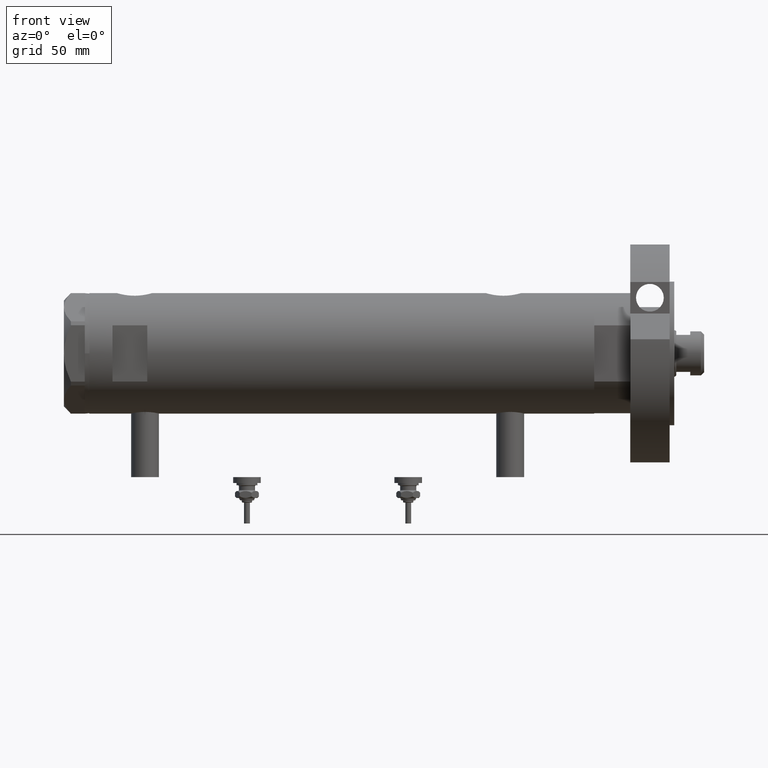
[diagram: clean part render]
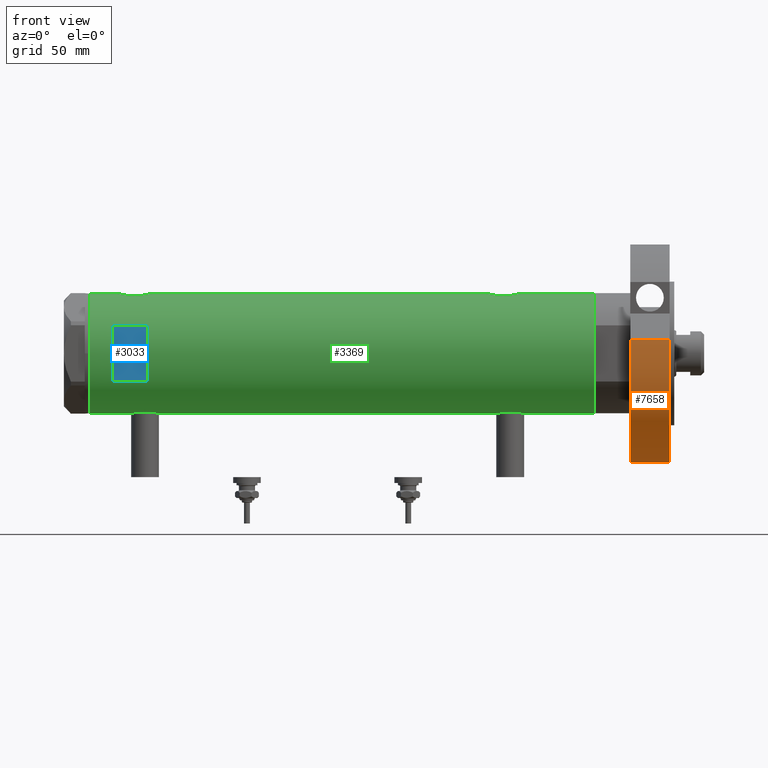
[diagram: same view with three faces highlighted in distinct colors, each labeled with its STEP entity id]
A machine part, front view with three faces highlighted in distinct colors.
Their STEP definitions:

[orange] entity #7658 — the highlighted cylindrical surface (partial cylindrical patch) has radius 47 mm, axis along (-1, -0, 0).
#99 = DIRECTION ( 'NONE',  ( -0.000000000000000000, -0.000000000000000000, -1.000000000000000000 ) ) ;
#138 = ORIENTED_EDGE ( 'NONE', *, *, #5503, .F. ) ;
#517 = DIRECTION ( 'NONE',  ( 1.000000000000000000, 0.000000000000000000, 0.000000000000000000 ) ) ;
#659 = CYLINDRICAL_SURFACE ( 'NONE', #7114, 46.99999999999999289 ) ;
#1024 = CIRCLE ( 'NONE', #2175, 46.99999999999999289 ) ;
#1043 = ORIENTED_EDGE ( 'NONE', *, *, #5547, .F. ) ;
#1628 = CARTESIAN_POINT ( 'NONE',  ( 6.092310621118299352, 46.60347359688769586, 0.000000000000000000 ) ) ;
#1698 = VERTEX_POINT ( 'NONE', #6099 ) ;
#1730 = CARTESIAN_POINT ( 'NONE',  ( 0.000000000000000000, 0.000000000000000000, 0.000000000000000000 ) ) ;
#1815 = ORIENTED_EDGE ( 'NONE', *, *, #5101, .F. ) ;
#1840 = CARTESIAN_POINT ( 'NONE',  ( 0.000000000000000000, 0.000000000000000000, 17.00000000000000000 ) ) ;
#1862 = DIRECTION ( 'NONE',  ( -1.000000000000000000, 0.000000000000000000, 0.000000000000000000 ) ) ;
#2175 = AXIS2_PLACEMENT_3D ( 'NONE', #1730, #6005, #7207 ) ;
#2451 = AXIS2_PLACEMENT_3D ( 'NONE', #1840, #3531, #517 ) ;
#2509 = CARTESIAN_POINT ( 'NONE',  ( 0.000000000000000000, 0.000000000000000000, 17.00000000000000000 ) ) ;
#2855 = VERTEX_POINT ( 'NONE', #7503 ) ;
#2910 = LINE ( 'NONE', #1628, #5799 ) ;
#3039 = VERTEX_POINT ( 'NONE', #5210 ) ;
#3229 = VERTEX_POINT ( 'NONE', #6333 ) ;
#3356 = VECTOR ( 'NONE', #5432, 1000.000000000000000 ) ;
#3531 = DIRECTION ( 'NONE',  ( 0.000000000000000000, 0.000000000000000000, 1.000000000000000000 ) ) ;
#3609 = LINE ( 'NONE', #3688, #3356 ) ;
#3688 = CARTESIAN_POINT ( 'NONE',  ( -46.99999999999999289, 0.000000000000000000, 17.00000000000000000 ) ) ;
#3790 = EDGE_CURVE ( 'NONE', #3039, #1698, #1024, .T. ) ;
#4323 = ORIENTED_EDGE ( 'NONE', *, *, #3790, .T. ) ;
#4466 = EDGE_LOOP ( 'NONE', ( #138, #1043, #1815, #4323 ) ) ;
#5101 = EDGE_CURVE ( 'NONE', #3039, #2855, #2910, .T. ) ;
#5210 = CARTESIAN_POINT ( 'NONE',  ( 6.092310621118299352, 46.60347359688769586, 0.000000000000000000 ) ) ;
#5367 = DIRECTION ( 'NONE',  ( -0.000000000000000000, -0.000000000000000000, 1.000000000000000000 ) ) ;
#5432 = DIRECTION ( 'NONE',  ( -0.000000000000000000, -0.000000000000000000, -1.000000000000000000 ) ) ;
#5503 = EDGE_CURVE ( 'NONE', #3229, #1698, #3609, .T. ) ;
#5547 = EDGE_CURVE ( 'NONE', #2855, #3229, #5931, .T. ) ;
#5613 = FACE_OUTER_BOUND ( 'NONE', #4466, .T. ) ;
#5799 = VECTOR ( 'NONE', #5367, 1000.000000000000000 ) ;
#5931 = CIRCLE ( 'NONE', #2451, 46.99999999999999289 ) ;
#6005 = DIRECTION ( 'NONE',  ( 0.000000000000000000, 0.000000000000000000, 1.000000000000000000 ) ) ;
#6099 = CARTESIAN_POINT ( 'NONE',  ( -46.99999999999999289, 0.000000000000000000, 0.000000000000000000 ) ) ;
#6333 = CARTESIAN_POINT ( 'NONE',  ( -46.99999999999999289, 0.000000000000000000, 17.00000000000000000 ) ) ;
#7114 = AXIS2_PLACEMENT_3D ( 'NONE', #2509, #99, #1862 ) ;
#7207 = DIRECTION ( 'NONE',  ( 1.000000000000000000, 0.000000000000000000, 0.000000000000000000 ) ) ;
#7503 = CARTESIAN_POINT ( 'NONE',  ( 6.092310621118299352, 46.60347359688769586, 17.00000000000000000 ) ) ;
#7658 = ADVANCED_FACE ( 'NONE', ( #5613 ), #659, .T. ) ;

[blue] entity #3033 — the highlighted planar face has unit normal (-0, 1, 0).
#28 = CARTESIAN_POINT ( 'NONE',  ( -26.00000000000000355, -23.00000000000000355, 83.95000000000003126 ) ) ;
#78 = LINE ( 'NONE', #2525, #3083 ) ;
#166 = VERTEX_POINT ( 'NONE', #5138 ) ;
#297 = DIRECTION ( 'NONE',  ( 0.000000000000000000, 1.000000000000000000, 0.000000000000000000 ) ) ;
#644 = CARTESIAN_POINT ( 'NONE',  ( 12.12435565298214080, -23.00000000000000355, 83.95000000000001705 ) ) ;
#645 = VECTOR ( 'NONE', #5662, 1000.000000000000000 ) ;
#779 = CARTESIAN_POINT ( 'NONE',  ( 12.12435565298214080, -23.00000000000000355, 98.95000000000001705 ) ) ;
#1311 = ORIENTED_EDGE ( 'NONE', *, *, #4701, .T. ) ;
#1417 = LINE ( 'NONE', #6971, #5955 ) ;
#1467 = VECTOR ( 'NONE', #3658, 1000.000000000000000 ) ;
#1920 = DIRECTION ( 'NONE',  ( -0.000000000000000000, -0.000000000000000000, -1.000000000000000000 ) ) ;
#2141 = ORIENTED_EDGE ( 'NONE', *, *, #7875, .F. ) ;
#2525 = CARTESIAN_POINT ( 'NONE',  ( -12.12435565298214080, -23.00000000000000355, -108.9500000000000028 ) ) ;
#2756 = DIRECTION ( 'NONE',  ( 0.000000000000000000, -0.000000000000000000, 1.000000000000000000 ) ) ;
#2941 = AXIS2_PLACEMENT_3D ( 'NONE', #5328, #297, #2756 ) ;
#3033 = ADVANCED_FACE ( 'NONE', ( #5933 ), #5898, .F. ) ;
#3083 = VECTOR ( 'NONE', #1920, 1000.000000000000000 ) ;
#3161 = LINE ( 'NONE', #28, #645 ) ;
#3584 = EDGE_LOOP ( 'NONE', ( #6161, #1311, #3758, #2141 ) ) ;
#3658 = DIRECTION ( 'NONE',  ( 1.000000000000000000, -0.000000000000000000, -0.000000000000000000 ) ) ;
#3705 = VERTEX_POINT ( 'NONE', #4985 ) ;
#3758 = ORIENTED_EDGE ( 'NONE', *, *, #7029, .T. ) ;
#3883 = VERTEX_POINT ( 'NONE', #644 ) ;
#4360 = EDGE_CURVE ( 'NONE', #166, #3705, #78, .T. ) ;
#4701 = EDGE_CURVE ( 'NONE', #3705, #3883, #3161, .T. ) ;
#4985 = CARTESIAN_POINT ( 'NONE',  ( -12.12435565298214080, -23.00000000000000355, 83.95000000000001705 ) ) ;
#5036 = LINE ( 'NONE', #7488, #1467 ) ;
#5138 = CARTESIAN_POINT ( 'NONE',  ( -12.12435565298214080, -23.00000000000000355, 98.95000000000001705 ) ) ;
#5328 = CARTESIAN_POINT ( 'NONE',  ( -26.00000000000000355, -23.00000000000000355, 98.95000000000001705 ) ) ;
#5662 = DIRECTION ( 'NONE',  ( 1.000000000000000000, -0.000000000000000000, -0.000000000000000000 ) ) ;
#5898 = PLANE ( 'NONE',  #2941 ) ;
#5933 = FACE_OUTER_BOUND ( 'NONE', #3584, .T. ) ;
#5955 = VECTOR ( 'NONE', #7046, 1000.000000000000000 ) ;
#6161 = ORIENTED_EDGE ( 'NONE', *, *, #4360, .T. ) ;
#6335 = VERTEX_POINT ( 'NONE', #779 ) ;
#6971 = CARTESIAN_POINT ( 'NONE',  ( 12.12435565298214080, -23.00000000000000355, -108.9500000000000028 ) ) ;
#7029 = EDGE_CURVE ( 'NONE', #3883, #6335, #1417, .T. ) ;
#7046 = DIRECTION ( 'NONE',  ( 0.000000000000000000, 0.000000000000000000, 1.000000000000000000 ) ) ;
#7488 = CARTESIAN_POINT ( 'NONE',  ( -26.00000000000000355, -23.00000000000000355, 98.95000000000001705 ) ) ;
#7875 = EDGE_CURVE ( 'NONE', #166, #6335, #5036, .T. ) ;

[green] entity #3369 — the highlighted cylindrical surface (partial cylindrical patch) has radius 26 mm, axis along (-1, -0, 0).
#46 = CARTESIAN_POINT ( 'NONE',  ( -25.57228991600091916, -4.705691472451703383, -76.78339690124650474 ) ) ;
#64 = CARTESIAN_POINT ( 'NONE',  ( -25.92425332714051933, -2.018894156999441858, 79.02103879324673130 ) ) ;
#78 = LINE ( 'NONE', #2525, #3083 ) ;
#119 = CARTESIAN_POINT ( 'NONE',  ( 25.11243836838846377, -6.738202653785839935, 86.12043350844844269 ) ) ;
#144 = CARTESIAN_POINT ( 'NONE',  ( -25.57228991600092272, -4.705691472451695390, 80.81660309875346115 ) ) ;
#162 = CARTESIAN_POINT ( 'NONE',  ( 25.11342038069227200, -6.734617143597215971, 92.78770695790494472 ) ) ;
#166 = VERTEX_POINT ( 'NONE', #5138 ) ;
#198 = CARTESIAN_POINT ( 'NONE',  ( 25.38109653984943392, -5.641393955635675361, 94.39819092448752258 ) ) ;
#217 = CARTESIAN_POINT ( 'NONE',  ( -25.81232680456766815, -3.137210741985116513, 90.37113657221574670 ) ) ;
#228 = EDGE_CURVE ( 'NONE', #5556, #5837, #5666, .T. ) ;
#240 = CIRCLE ( 'NONE', #2535, 26.00000000000000355 ) ;
#244 = CARTESIAN_POINT ( 'NONE',  ( -25.24765475072630139, -6.209883762780003202, -71.83321815644899289 ) ) ;
#258 = CARTESIAN_POINT ( 'NONE',  ( -25.38662204309616399, -5.616507264474307703, 87.72199377719323365 ) ) ;
#281 = CARTESIAN_POINT ( 'NONE',  ( 24.89854802586675220, -7.487520416261751244, -69.25184316422095776 ) ) ;
#318 = CARTESIAN_POINT ( 'NONE',  ( 25.01107424167500071, -7.102941973849621782, -72.17062848662580166 ) ) ;
#340 = LINE ( 'NONE', #5175, #1562 ) ;
#396 = CARTESIAN_POINT ( 'NONE',  ( 25.27534302296961854, -6.097250460344751488, -65.37590386902925843 ) ) ;
#401 = CARTESIAN_POINT ( 'NONE',  ( -26.00000000000000355, 3.184081677783118585E-15, -108.9500000000000028 ) ) ;
#469 = CARTESIAN_POINT ( 'NONE',  ( 25.11243836838845311, -6.738202653785838159, -73.07956649155158857 ) ) ;
#555 = CARTESIAN_POINT ( 'NONE',  ( 25.52449676677458967, -4.953491517965894708, -75.38674491334074901 ) ) ;
#602 = CARTESIAN_POINT ( 'NONE',  ( -25.92425332714051933, -2.018894156999447631, -78.57896120675330565 ) ) ;
#613 = VECTOR ( 'NONE', #5198, 1000.000000000000000 ) ;
#620 = CARTESIAN_POINT ( 'NONE',  ( -26.00000000000001066, -0.4086738135806035066, 78.70000000000000284 ) ) ;
#644 = CARTESIAN_POINT ( 'NONE',  ( 12.12435565298214080, -23.00000000000000355, 83.95000000000001705 ) ) ;
#646 = EDGE_CURVE ( 'NONE', #6305, #4344, #7200, .T. ) ;
#647 = CARTESIAN_POINT ( 'NONE',  ( -25.72076778631230098, -3.815670258243491819, -77.61687810531877574 ) ) ;
#675 = EDGE_CURVE ( 'NONE', #6335, #166, #1392, .T. ) ;
#679 = CARTESIAN_POINT ( 'NONE',  ( 25.59500516383205593, -4.575229401795806616, 83.50212244934579076 ) ) ;
#697 = ORIENTED_EDGE ( 'NONE', *, *, #1704, .F. ) ;
#704 = CARTESIAN_POINT ( 'NONE',  ( -25.99999999999999289, -0.4144764235405741237, 91.19999999999997442 ) ) ;
#759 = CARTESIAN_POINT ( 'NONE',  ( 25.78993643992928142, -3.329561377902412467, 96.18821560278738048 ) ) ;
#762 = AXIS2_PLACEMENT_3D ( 'NONE', #1617, #3498, #4030 ) ;
#779 = CARTESIAN_POINT ( 'NONE',  ( 12.12435565298214080, -23.00000000000000355, 98.95000000000001705 ) ) ;
#784 = CARTESIAN_POINT ( 'NONE',  ( -25.72076778631230098, -3.815670258243490043, 79.98312189468119016 ) ) ;
#795 = CARTESIAN_POINT ( 'NONE',  ( 0.000000000000000000, 0.000000000000000000, 108.9500000000000028 ) ) ;
#801 = CARTESIAN_POINT ( 'NONE',  ( 24.89475831528844907, -7.500067228253142204, 88.95662571746466085 ) ) ;
#808 = CARTESIAN_POINT ( 'NONE',  ( -25.99009752186833566, -0.8230863847107360298, -66.44082928593320503 ) ) ;
#826 = CARTESIAN_POINT ( 'NONE',  ( -25.42883439573799720, -5.424786127492320809, 88.08081457260908564 ) ) ;
#841 = CARTESIAN_POINT ( 'NONE',  ( 25.27534302296961499, -6.097250460344759482, 93.82409613097075862 ) ) ;
#848 = CARTESIAN_POINT ( 'NONE',  ( 0.000000000000000000, 0.000000000000000000, 83.95000000000011653 ) ) ;
#859 = CARTESIAN_POINT ( 'NONE',  ( -25.28632996747172967, -6.050474653715409268, 86.56911870841543077 ) ) ;
#862 = VERTEX_POINT ( 'NONE', #2528 ) ;
#888 = CARTESIAN_POINT ( 'NONE',  ( 25.78993643992928497, -3.329561377902416464, -63.01178439721262237 ) ) ;
#890 = CARTESIAN_POINT ( 'NONE',  ( -26.00000000000001066, -0.4144764235405758446, -66.40000000000004832 ) ) ;
#953 = CARTESIAN_POINT ( 'NONE',  ( 26.00000000000000355, 3.155021778966484351E-16, -77.25000000000001421 ) ) ;
#970 = CARTESIAN_POINT ( 'NONE',  ( 0.000000000000000000, 0.000000000000000000, 98.95000000000001705 ) ) ;
#1092 = ORIENTED_EDGE ( 'NONE', *, *, #2392, .T. ) ;
#1156 = ORIENTED_EDGE ( 'NONE', *, *, #6503, .T. ) ;
#1160 = CARTESIAN_POINT ( 'NONE',  ( 25.59500516383204882, -4.575229401795805728, -75.69787755065419788 ) ) ;
#1208 = CARTESIAN_POINT ( 'NONE',  ( -25.99036913299956453, -0.8159609457881454864, -78.86031143031891588 ) ) ;
#1264 = CARTESIAN_POINT ( 'NONE',  ( -25.99036913299955742, -0.8159609457881448202, 78.73968856968109264 ) ) ;
#1281 = CARTESIAN_POINT ( 'NONE',  ( 24.96672817551787915, -7.257586026187405004, 91.40384199721297875 ) ) ;
#1338 = CARTESIAN_POINT ( 'NONE',  ( -26.00000000000000355, 3.184081677783118585E-15, -108.9500000000000028 ) ) ;
#1363 = CARTESIAN_POINT ( 'NONE',  ( 26.00000000000000355, -3.975030973907779525E-20, 96.95000000000000284 ) ) ;
#1367 = EDGE_CURVE ( 'NONE', #5837, #2918, #240, .T. ) ;
#1387 = CARTESIAN_POINT ( 'NONE',  ( -25.25025691038242215, -6.198787452305312584, 84.12558834604206481 ) ) ;
#1392 = CIRCLE ( 'NONE', #7557, 26.00000000000000355 ) ;
#1405 = CARTESIAN_POINT ( 'NONE',  ( 25.59665538672497576, -4.580438224580683837, 95.40889127712392792 ) ) ;
#1408 = AXIS2_PLACEMENT_3D ( 'NONE', #848, #2534, #3865 ) ;
#1411 = ORIENTED_EDGE ( 'NONE', *, *, #7029, .F. ) ;
#1415 = CARTESIAN_POINT ( 'NONE',  ( -25.42883439573799720, -5.424786127492319920, -69.51918542739090867 ) ) ;
#1417 = LINE ( 'NONE', #6971, #5955 ) ;
#1429 = CARTESIAN_POINT ( 'NONE',  ( -25.31551596256916525, -5.928819821281963165, 82.92988508095918121 ) ) ;
#1494 = CARTESIAN_POINT ( 'NONE',  ( -25.71926338401909362, -3.813768894920908537, -67.69427860166180722 ) ) ;
#1518 = VERTEX_POINT ( 'NONE', #953 ) ;
#1562 = VECTOR ( 'NONE', #2142, 1000.000000000000000 ) ;
#1576 = CARTESIAN_POINT ( 'NONE',  ( -25.81232680456766815, -3.137210741985112072, -67.22886342778420499 ) ) ;
#1617 = CARTESIAN_POINT ( 'NONE',  ( 0.000000000000000000, 0.000000000000000000, -108.9500000000000028 ) ) ;
#1642 = CARTESIAN_POINT ( 'NONE',  ( 24.96672817551788626, -7.257586026187406780, -67.79615800278703830 ) ) ;
#1648 = LINE ( 'NONE', #5316, #613 ) ;
#1680 = CARTESIAN_POINT ( 'NONE',  ( 25.93098857934041490, -1.953835360821270628, -77.00773664702565213 ) ) ;
#1704 = EDGE_CURVE ( 'NONE', #4344, #5556, #6868, .T. ) ;
#1714 = CARTESIAN_POINT ( 'NONE',  ( -26.00000000000000355, 3.184081677783118585E-15, 108.9500000000000028 ) ) ;
#1724 = DIRECTION ( 'NONE',  ( 0.000000000000000000, 0.000000000000000000, 1.000000000000000000 ) ) ;
#1797 = CARTESIAN_POINT ( 'NONE',  ( 25.30930190055638818, -5.959775463244130655, -74.32974043478030524 ) ) ;
#1877 = CARTESIAN_POINT ( 'NONE',  ( 25.38125492692911678, -5.649348210287295835, 84.49305665653602659 ) ) ;
#1903 = CARTESIAN_POINT ( 'NONE',  ( -25.78943824387523520, -3.306687742228914484, 79.64245861216535616 ) ) ;
#1920 = DIRECTION ( 'NONE',  ( -0.000000000000000000, -0.000000000000000000, -1.000000000000000000 ) ) ;
#2011 = CARTESIAN_POINT ( 'NONE',  ( -25.25025691038241860, -6.198787452305312584, -73.47441165395792950 ) ) ;
#2023 = CARTESIAN_POINT ( 'NONE',  ( -26.00000000000000355, 1.227111019500118713E-15, 91.20000000000000284 ) ) ;
#2040 = CARTESIAN_POINT ( 'NONE',  ( 24.90947356773249055, -7.451722770779351634, 88.46809158171845411 ) ) ;
#2058 = ORIENTED_EDGE ( 'NONE', *, *, #2617, .T. ) ;
#2063 = CARTESIAN_POINT ( 'NONE',  ( -25.59645788645699227, -4.565358797148518555, 89.22330529203479443 ) ) ;
#2126 = CARTESIAN_POINT ( 'NONE',  ( -25.23763877699556701, -6.249927116972441965, -72.85835527665466316 ) ) ;
#2142 = DIRECTION ( 'NONE',  ( 0.000000000000000000, 0.000000000000000000, 1.000000000000000000 ) ) ;
#2155 = CARTESIAN_POINT ( 'NONE',  ( 25.93098857934040780, -1.953835360821273515, 82.19226335297440755 ) ) ;
#2163 = CARTESIAN_POINT ( 'NONE',  ( 25.41756773306325812, -5.475260495868981003, -64.61859126343054527 ) ) ;
#2165 = CARTESIAN_POINT ( 'NONE',  ( -25.25769689814629970, -6.168504065326070318, -73.67646635296743796 ) ) ;
#2204 = CARTESIAN_POINT ( 'NONE',  ( 25.98599366666249111, -0.9828433289544102891, -62.29811598276526752 ) ) ;
#2240 = CARTESIAN_POINT ( 'NONE',  ( 24.91324908721445297, -7.438459228814674695, -68.75982500625811156 ) ) ;
#2247 = CYLINDRICAL_SURFACE ( 'NONE', #762, 26.00000000000000355 ) ;
#2298 = EDGE_LOOP ( 'NONE', ( #5460, #1156, #6201, #4449, #2058, #4851, #1092, #4084, #5164, #697, #6063, #3518 ) ) ;
#2345 = AXIS2_PLACEMENT_3D ( 'NONE', #6376, #5734, #3949 ) ;
#2392 = EDGE_CURVE ( 'NONE', #4623, #2918, #1648, .T. ) ;
#2485 = CARTESIAN_POINT ( 'NONE',  ( 24.96970063328116751, -7.247045583599700080, 87.50280785145197626 ) ) ;
#2495 = CARTESIAN_POINT ( 'NONE',  ( -25.52190669608695472, -4.968444991210427375, -76.46341092192484723 ) ) ;
#2511 = CARTESIAN_POINT ( 'NONE',  ( -25.87202607293667000, -2.583404329177993120, 79.25526333145485580 ) ) ;
#2525 = CARTESIAN_POINT ( 'NONE',  ( -12.12435565298214080, -23.00000000000000355, -108.9500000000000028 ) ) ;
#2528 = CARTESIAN_POINT ( 'NONE',  ( 26.00000000000000355, -3.975028449552882818E-20, -62.24999999999999289 ) ) ;
#2534 = DIRECTION ( 'NONE',  ( -0.000000000000000000, -4.625929269271486900E-15, 1.000000000000000000 ) ) ;
#2535 = AXIS2_PLACEMENT_3D ( 'NONE', #795, #2610, #3245 ) ;
#2555 = CARTESIAN_POINT ( 'NONE',  ( -25.85385060263650914, -2.778671585188189574, 90.56314451304237423 ) ) ;
#2572 = CARTESIAN_POINT ( 'NONE',  ( 25.72912156655464955, -3.765948295762494791, 82.94557024600776174 ) ) ;
#2577 = VERTEX_POINT ( 'NONE', #6314 ) ;
#2600 = CARTESIAN_POINT ( 'NONE',  ( -25.74330903162726258, -3.648508829439215617, 90.02867714715799252 ) ) ;
#2610 = DIRECTION ( 'NONE',  ( 0.000000000000000000, 0.000000000000000000, 1.000000000000000000 ) ) ;
#2615 = CARTESIAN_POINT ( 'NONE',  ( 24.89478872726945369, -7.499966281647711064, 89.69821850634781413 ) ) ;
#2617 = EDGE_CURVE ( 'NONE', #862, #6140, #6914, .T. ) ;
#2636 = CARTESIAN_POINT ( 'NONE',  ( -25.57167894663063024, -4.701762988462085069, 89.07280450192419607 ) ) ;
#2661 = CARTESIAN_POINT ( 'NONE',  ( -25.67063510297210271, -4.128418051804843003, -67.95317424728736455 ) ) ;
#2674 = CARTESIAN_POINT ( 'NONE',  ( -25.23758491649666524, -6.250144606721703688, 85.36011699571807299 ) ) ;
#2675 = CARTESIAN_POINT ( 'NONE',  ( 26.00000000000000355, 0.000000000000000000, 108.9500000000000028 ) ) ;
#2703 = CARTESIAN_POINT ( 'NONE',  ( -25.64593536028936072, -4.278686337618961666, -68.08968397039120646 ) ) ;
#2738 = CARTESIAN_POINT ( 'NONE',  ( 24.95200646071794637, -7.307522494171291960, -71.45607564187282890 ) ) ;
#2766 = CARTESIAN_POINT ( 'NONE',  ( 26.00000000000000355, 0.000000000000000000, -108.9500000000000028 ) ) ;
#2777 = CARTESIAN_POINT ( 'NONE',  ( -25.28680988956730147, -6.048472998962280300, -74.27627694188244334 ) ) ;
#2808 = CARTESIAN_POINT ( 'NONE',  ( 25.88994451797511687, -2.432613607265607936, 82.33859031286796437 ) ) ;
#2850 = CARTESIAN_POINT ( 'NONE',  ( 26.00000000000000000, -0.4982617809740604309, 81.94999999999998863 ) ) ;
#2856 = CARTESIAN_POINT ( 'NONE',  ( 25.11342038069226135, -6.734617143597214195, -66.41229304209502970 ) ) ;
#2918 = VERTEX_POINT ( 'NONE', #2675 ) ;
#3059 = CARTESIAN_POINT ( 'NONE',  ( -25.87202607293667000, -2.583404329177999337, -78.34473666854512430 ) ) ;
#3083 = VECTOR ( 'NONE', #1920, 1000.000000000000000 ) ;
#3130 = CARTESIAN_POINT ( 'NONE',  ( -26.00000000000000355, 3.184077527313362130E-15, 78.69999999999998863 ) ) ;
#3170 = CARTESIAN_POINT ( 'NONE',  ( 25.52567976009756023, -4.956266804246118873, 95.10019927459099165 ) ) ;
#3195 = CARTESIAN_POINT ( 'NONE',  ( -25.25769689814630325, -6.168504065326069430, 83.92353364703255636 ) ) ;
#3220 = CARTESIAN_POINT ( 'NONE',  ( -25.28632996747171546, -6.050474653715410156, -71.03088129158460617 ) ) ;
#3235 = CARTESIAN_POINT ( 'NONE',  ( -25.23763877699557412, -6.249927116972443741, 84.74164472334534537 ) ) ;
#3245 = DIRECTION ( 'NONE',  ( 1.000000000000000000, 0.000000000000000000, 0.000000000000000000 ) ) ;
#3274 = CARTESIAN_POINT ( 'NONE',  ( -25.49846181844014481, -5.083495422175113632, 88.59177503382598218 ) ) ;
#3279 = CARTESIAN_POINT ( 'NONE',  ( 26.00000000000000355, 0.000000000000000000, -108.9500000000000028 ) ) ;
#3289 = CARTESIAN_POINT ( 'NONE',  ( 25.01107424167501492, -7.102941973849622670, 87.02937151337422961 ) ) ;
#3331 = EDGE_CURVE ( 'NONE', #4624, #2577, #4554, .T. ) ;
#3336 = CARTESIAN_POINT ( 'NONE',  ( -25.38662204309617465, -5.616507264474307703, -69.87800622280676066 ) ) ;
#3368 = B_SPLINE_CURVE_WITH_KNOTS ( 'NONE', 3,
 ( #6164, #6289, #1208, #6121, #602, #3059, #5520, #4304, #6762, #647, #5559, #46, #2495, #7404, #4954, #6327, #2777, #2165, #2011, #7009, #2126, #3983, #244, #3220, #4548, #3336, #1415, #5230, #7086, #7645, #7567, #2703, #2661, #1494, #7528, #1576, #7686, #4628, #4470, #808, #890, #5195 ),
 .UNSPECIFIED., .F., .F.,
 ( 4, 2, 2, 2, 2, 2, 2, 2, 2, 2, 2, 2, 2, 2, 2, 2, 2, 2, 2, 2, 4 ),
 ( 0.01961238453869445023, 0.02083783025472766420, 0.02206327597076088165, 0.02267599882877747997, 0.02328872168679408175, 0.02451416740282726103, 0.02573961311886044032, 0.02696505883489361960, 0.02819050455092679541, 0.02880322740894340761, 0.02941595026696001633, 0.03064139598299327888, 0.03186684169902653796, 0.03309228741505979704, 0.03370501027307643005, 0.03431773313109305612, 0.03493045598910968219, 0.03554317884712631520, 0.03676862456315957428, 0.03799407027919284030, 0.03921951599522609938 ),
 .UNSPECIFIED. ) ;
#3369 = ADVANCED_FACE ( 'NONE', ( #7768, #5199 ), #2247, .T. ) ;
#3414 = CARTESIAN_POINT ( 'NONE',  ( 25.52567976009756734, -4.956266804246113544, -64.09980072540906804 ) ) ;
#3498 = DIRECTION ( 'NONE',  ( 0.000000000000000000, 0.000000000000000000, 1.000000000000000000 ) ) ;
#3518 = ORIENTED_EDGE ( 'NONE', *, *, #7902, .F. ) ;
#3529 = CARTESIAN_POINT ( 'NONE',  ( 26.00000000000001066, -0.4982617809740571002, -77.25000000000004263 ) ) ;
#3606 = CARTESIAN_POINT ( 'NONE',  ( 25.62983961939740141, -4.376509667782460866, -75.84558499042961444 ) ) ;
#3672 = CARTESIAN_POINT ( 'NONE',  ( -26.00000000000000355, 3.184077527313362130E-15, 78.69999999999998863 ) ) ;
#3705 = VERTEX_POINT ( 'NONE', #4985 ) ;
#3716 = CARTESIAN_POINT ( 'NONE',  ( -25.95218276861526263, -1.627663810194431404, 78.90149019612394454 ) ) ;
#3766 = CARTESIAN_POINT ( 'NONE',  ( -26.00000000000000355, 3.184081677783118585E-15, -108.9500000000000028 ) ) ;
#3812 = CARTESIAN_POINT ( 'NONE',  ( 25.31004928890825667, -5.952041021437470825, 94.01980599883506784 ) ) ;
#3840 = CARTESIAN_POINT ( 'NONE',  ( -25.31538696791482224, -5.929326713517952818, 86.96796632208101130 ) ) ;
#3865 = DIRECTION ( 'NONE',  ( 1.776356839400250465E-15, 1.000000000000000000, 4.803849625781927035E-15 ) ) ;
#3881 = CARTESIAN_POINT ( 'NONE',  ( -25.24022290516698774, -6.239518219915429320, 84.53402784061569264 ) ) ;
#3883 = VERTEX_POINT ( 'NONE', #644 ) ;
#3917 = EDGE_CURVE ( 'NONE', #3705, #3883, #5268, .T. ) ;
#3918 = CARTESIAN_POINT ( 'NONE',  ( -25.92364458890660472, -2.026637113504541343, 90.87630990691475574 ) ) ;
#3949 = DIRECTION ( 'NONE',  ( 1.000000000000000000, 0.000000000000000000, 0.000000000000000000 ) ) ;
#3983 = CARTESIAN_POINT ( 'NONE',  ( -25.23758491649665459, -6.250144606721702800, -72.23988300428190712 ) ) ;
#4021 = CARTESIAN_POINT ( 'NONE',  ( 25.72873412774686130, -3.768477344985557753, -63.24712539855536875 ) ) ;
#4030 = DIRECTION ( 'NONE',  ( 1.000000000000000000, 0.000000000000000000, 0.000000000000000000 ) ) ;
#4037 = EDGE_CURVE ( 'NONE', #862, #1518, #4546, .T. ) ;
#4084 = ORIENTED_EDGE ( 'NONE', *, *, #1367, .F. ) ;
#4089 = CARTESIAN_POINT ( 'NONE',  ( 26.00000000000000355, -3.975030973907779525E-20, 96.95000000000000284 ) ) ;
#4177 = DIRECTION ( 'NONE',  ( 1.000000000000000000, 0.000000000000000000, 0.000000000000000000 ) ) ;
#4216 = VECTOR ( 'NONE', #7515, 1000.000000000000000 ) ;
#4251 = CARTESIAN_POINT ( 'NONE',  ( 25.78902964777117290, -3.336582972512958101, -76.48475840457741981 ) ) ;
#4283 = ORIENTED_EDGE ( 'NONE', *, *, #675, .F. ) ;
#4304 = CARTESIAN_POINT ( 'NONE',  ( -25.81160981652326925, -3.129523010631804159, -78.06392973722074657 ) ) ;
#4335 = CARTESIAN_POINT ( 'NONE',  ( 25.48871066912672845, -5.133852125086512785, 83.97709693256024366 ) ) ;
#4344 = VERTEX_POINT ( 'NONE', #3130 ) ;
#4360 = EDGE_CURVE ( 'NONE', #166, #3705, #78, .T. ) ;
#4446 = CARTESIAN_POINT ( 'NONE',  ( -25.67167563980648026, -4.129238867693847403, 80.24065943568896841 ) ) ;
#4449 = ORIENTED_EDGE ( 'NONE', *, *, #4037, .F. ) ;
#4470 = CARTESIAN_POINT ( 'NONE',  ( -25.95206678899177533, -1.628763264760248353, -66.60199186669787252 ) ) ;
#4486 = CARTESIAN_POINT ( 'NONE',  ( -25.99009752186832856, -0.8230863847107351416, 91.15917071406683192 ) ) ;
#4502 = CARTESIAN_POINT ( 'NONE',  ( 24.95200646071793926, -7.307522494171290184, 87.74392435812720237 ) ) ;
#4546 = B_SPLINE_CURVE_WITH_KNOTS ( 'NONE', 3,
 ( #5919, #5758, #2204, #5153, #7041, #888, #4021, #4698, #3414, #2163, #7122, #7153, #396, #6443, #2856, #5309, #1642, #7761, #2240, #281, #6554, #5798, #5193, #2738, #5838, #318, #7917, #469, #7271, #1797, #6673, #6072, #555, #1160, #3606, #7794, #4251, #6711, #1680, #7233, #3529, #4901 ),
 .UNSPECIFIED., .F., .F.,
 ( 4, 2, 2, 2, 2, 2, 2, 2, 2, 2, 2, 2, 2, 2, 2, 2, 2, 2, 2, 2, 4 ),
 ( 0.02357432247332888822, 0.02504731828495722692, 0.02652031409658556910, 0.02799330990821390780, 0.02946630571984224650, 0.03020280362565641585, 0.03093930153147058520, 0.03241229734309895860, 0.03388529315472733200, 0.03462179106054152217, 0.03535828896635570540, 0.03683128477798407879, 0.03756778268379826896, 0.03830428058961245219, 0.03977727640124082559, 0.04125027221286919898, 0.04198677011868337527, 0.04272326802449755156, 0.04419626383612587639, 0.04566925964775419428, 0.04714225545938251910 ),
 .UNSPECIFIED. ) ;
#4548 = CARTESIAN_POINT ( 'NONE',  ( -25.31538696791482224, -5.929326713517954595, -70.63203367791901144 ) ) ;
#4554 = LINE ( 'NONE', #1338, #6422 ) ;
#4619 = CARTESIAN_POINT ( 'NONE',  ( 26.00000000000000355, 1.142179864233347086E-15, 81.94999999999998863 ) ) ;
#4623 = VERTEX_POINT ( 'NONE', #4089 ) ;
#4624 = VERTEX_POINT ( 'NONE', #5381 ) ;
#4628 = CARTESIAN_POINT ( 'NONE',  ( -25.92364458890659407, -2.026637113504532017, -66.72369009308523857 ) ) ;
#4698 = CARTESIAN_POINT ( 'NONE',  ( 25.59665538672497220, -4.580438224580683837, -63.79110872287611755 ) ) ;
#4849 = VERTEX_POINT ( 'NONE', #3279 ) ;
#4851 = ORIENTED_EDGE ( 'NONE', *, *, #5649, .F. ) ;
#4901 = CARTESIAN_POINT ( 'NONE',  ( 26.00000000000000355, 3.155021778966484351E-16, -77.25000000000001421 ) ) ;
#4914 = EDGE_CURVE ( 'NONE', #4849, #1518, #340, .T. ) ;
#4943 = CARTESIAN_POINT ( 'NONE',  ( 25.30930190055639528, -5.959775463244130655, 84.87025956521969761 ) ) ;
#4954 = CARTESIAN_POINT ( 'NONE',  ( -25.38744165544136422, -5.612847683295913548, -75.42987583238478067 ) ) ;
#4966 = CARTESIAN_POINT ( 'NONE',  ( -25.85288666140180069, -2.767917424206677524, 79.34257790010329359 ) ) ;
#4985 = CARTESIAN_POINT ( 'NONE',  ( -12.12435565298214080, -23.00000000000000355, 83.95000000000001705 ) ) ;
#5026 = CARTESIAN_POINT ( 'NONE',  ( 25.78902964777116225, -3.336582972512959877, 82.71524159542262566 ) ) ;
#5045 = CARTESIAN_POINT ( 'NONE',  ( -26.00000000000000355, 1.227111019500118713E-15, -66.40000000000000568 ) ) ;
#5089 = CARTESIAN_POINT ( 'NONE',  ( -25.71926338401910073, -3.813768894920909425, 89.90572139833814447 ) ) ;
#5104 = CARTESIAN_POINT ( 'NONE',  ( 24.92415241886515531, -7.401968919186696638, 90.68323537444815940 ) ) ;
#5138 = CARTESIAN_POINT ( 'NONE',  ( -12.12435565298214080, -23.00000000000000355, 98.95000000000001705 ) ) ;
#5153 = CARTESIAN_POINT ( 'NONE',  ( 25.93085545515513246, -1.956676574435514349, -62.49272963169730133 ) ) ;
#5164 = ORIENTED_EDGE ( 'NONE', *, *, #228, .F. ) ;
#5175 = CARTESIAN_POINT ( 'NONE',  ( 26.00000000000000355, 0.000000000000000000, -108.9500000000000028 ) ) ;
#5193 = CARTESIAN_POINT ( 'NONE',  ( 24.90947356773249055, -7.451722770779349858, -70.73190841828153452 ) ) ;
#5195 = CARTESIAN_POINT ( 'NONE',  ( -26.00000000000000355, 1.227111019500118713E-15, -66.40000000000000568 ) ) ;
#5198 = DIRECTION ( 'NONE',  ( 0.000000000000000000, 0.000000000000000000, 1.000000000000000000 ) ) ;
#5199 = FACE_BOUND ( 'NONE', #7361, .T. ) ;
#5230 = CARTESIAN_POINT ( 'NONE',  ( -25.49846181844014836, -5.083495422175115408, -69.00822496617402635 ) ) ;
#5268 = CIRCLE ( 'NONE', #1408, 26.00000000000000355 ) ;
#5309 = CARTESIAN_POINT ( 'NONE',  ( 25.00829008792692321, -7.115081037226479665, -67.32698996259182422 ) ) ;
#5316 = CARTESIAN_POINT ( 'NONE',  ( 26.00000000000000355, 0.000000000000000000, -108.9500000000000028 ) ) ;
#5370 = VECTOR ( 'NONE', #1724, 1000.000000000000000 ) ;
#5381 = CARTESIAN_POINT ( 'NONE',  ( -26.00000000000000355, 3.184081677783118585E-15, -108.9500000000000028 ) ) ;
#5460 = ORIENTED_EDGE ( 'NONE', *, *, #3331, .F. ) ;
#5520 = CARTESIAN_POINT ( 'NONE',  ( -25.85288666140181135, -2.767917424206679744, -78.25742209989670073 ) ) ;
#5556 = VERTEX_POINT ( 'NONE', #7272 ) ;
#5559 = CARTESIAN_POINT ( 'NONE',  ( -25.67167563980648382, -4.129238867693852733, -77.35934056431106853 ) ) ;
#5590 = CARTESIAN_POINT ( 'NONE',  ( 24.89854802586674865, -7.487520416261751244, 89.94815683577905929 ) ) ;
#5629 = CARTESIAN_POINT ( 'NONE',  ( 26.00000000000000355, -0.4910237949823202386, 96.95000000000000284 ) ) ;
#5649 = EDGE_CURVE ( 'NONE', #4623, #6140, #6649, .T. ) ;
#5666 = LINE ( 'NONE', #3766, #7043 ) ;
#5675 = CARTESIAN_POINT ( 'NONE',  ( 25.41756773306325456, -5.475260495868988109, 94.58140873656952863 ) ) ;
#5696 = CARTESIAN_POINT ( 'NONE',  ( -25.67063510297210271, -4.128418051804843003, 89.64682575271265819 ) ) ;
#5734 = DIRECTION ( 'NONE',  ( 0.000000000000000000, 0.000000000000000000, 1.000000000000000000 ) ) ;
#5752 = CARTESIAN_POINT ( 'NONE',  ( 25.89059789403177092, -2.425642437452268041, 96.56377447242302026 ) ) ;
#5758 = CARTESIAN_POINT ( 'NONE',  ( 26.00000000000000000, -0.4910237949823181847, -62.24999999999997868 ) ) ;
#5774 = CARTESIAN_POINT ( 'NONE',  ( -25.38744165544136777, -5.612847683295913548, 82.17012416761524207 ) ) ;
#5798 = CARTESIAN_POINT ( 'NONE',  ( 24.89475831528844552, -7.500067228253141316, -70.24337428253535620 ) ) ;
#5833 = CIRCLE ( 'NONE', #2345, 26.00000000000000355 ) ;
#5837 = VERTEX_POINT ( 'NONE', #1714 ) ;
#5838 = CARTESIAN_POINT ( 'NONE',  ( 24.96970063328117462, -7.247045583599700080, -71.69719214854804079 ) ) ;
#5919 = CARTESIAN_POINT ( 'NONE',  ( 26.00000000000000355, -3.975028449552882818E-20, -62.24999999999999289 ) ) ;
#5922 = DIRECTION ( 'NONE',  ( -0.000000000000000000, 0.000000000000000000, -1.000000000000000000 ) ) ;
#5955 = VECTOR ( 'NONE', #7046, 1000.000000000000000 ) ;
#5976 = ORIENTED_EDGE ( 'NONE', *, *, #4360, .F. ) ;
#6063 = ORIENTED_EDGE ( 'NONE', *, *, #646, .F. ) ;
#6072 = CARTESIAN_POINT ( 'NONE',  ( 25.48871066912673911, -5.133852125086513674, -75.22290306743980182 ) ) ;
#6121 = CARTESIAN_POINT ( 'NONE',  ( -25.95218276861526974, -1.627663810194430960, -78.69850980387604977 ) ) ;
#6140 = VERTEX_POINT ( 'NONE', #7898 ) ;
#6164 = CARTESIAN_POINT ( 'NONE',  ( -26.00000000000000355, 3.184077527325983904E-15, -78.90000000000000568 ) ) ;
#6197 = CARTESIAN_POINT ( 'NONE',  ( 25.17393786935995692, -6.507882790539431639, 85.68962666655968974 ) ) ;
#6201 = ORIENTED_EDGE ( 'NONE', *, *, #4914, .T. ) ;
#6237 = CARTESIAN_POINT ( 'NONE',  ( 25.72873412774686841, -3.768477344985559085, 95.95287460144463410 ) ) ;
#6289 = CARTESIAN_POINT ( 'NONE',  ( -25.99999999999999645, -0.4086738135806038397, -78.90000000000000568 ) ) ;
#6294 = DIRECTION ( 'NONE',  ( 0.000000000000000000, 0.000000000000000000, 1.000000000000000000 ) ) ;
#6303 = CARTESIAN_POINT ( 'NONE',  ( -25.64593536028936427, -4.278686337618962554, 89.51031602960877365 ) ) ;
#6305 = VERTEX_POINT ( 'NONE', #5045 ) ;
#6312 = DIRECTION ( 'NONE',  ( 0.000000000000000000, 0.000000000000000000, 1.000000000000000000 ) ) ;
#6314 = CARTESIAN_POINT ( 'NONE',  ( -26.00000000000000355, 3.184077527325983904E-15, -78.90000000000000568 ) ) ;
#6318 = CARTESIAN_POINT ( 'NONE',  ( 25.00829008792690900, -7.115081037226478777, 91.87301003740817862 ) ) ;
#6327 = CARTESIAN_POINT ( 'NONE',  ( -25.31551596256916525, -5.928819821281961389, -74.67011491904084153 ) ) ;
#6335 = VERTEX_POINT ( 'NONE', #779 ) ;
#6339 = CARTESIAN_POINT ( 'NONE',  ( -25.42977453177915592, -5.420307583276858132, 81.81187728206637644 ) ) ;
#6376 = CARTESIAN_POINT ( 'NONE',  ( 0.000000000000000000, 0.000000000000000000, -108.9500000000000028 ) ) ;
#6422 = VECTOR ( 'NONE', #6294, 1000.000000000000000 ) ;
#6443 = CARTESIAN_POINT ( 'NONE',  ( 25.17510548814052029, -6.503212750695466227, -65.98238212184648432 ) ) ;
#6503 = EDGE_CURVE ( 'NONE', #4624, #4849, #5833, .T. ) ;
#6550 = CARTESIAN_POINT ( 'NONE',  ( 25.98569226047904834, -0.9886551788957221865, 81.99917623399818467 ) ) ;
#6554 = CARTESIAN_POINT ( 'NONE',  ( 24.89478872726945013, -7.499966281647711064, -69.50178149365218871 ) ) ;
#6649 = B_SPLINE_CURVE_WITH_KNOTS ( 'NONE', 3,
 ( #1363, #5629, #6919, #6839, #5752, #759, #6237, #1405, #3170, #5675, #198, #3812, #841, #7481, #162, #6318, #1281, #5104, #7554, #5590, #2615, #801, #2040, #4502, #2485, #3289, #7395, #119, #6197, #4943, #1877, #4335, #6798, #679, #7441, #2572, #5026, #2808, #2155, #6550, #2850, #4619 ),
 .UNSPECIFIED., .F., .F.,
 ( 4, 2, 2, 2, 2, 2, 2, 2, 2, 2, 2, 2, 2, 2, 2, 2, 2, 2, 2, 2, 4 ),
 ( 0.02357432247332889169, 0.02504731828495727897, 0.02652031409658566277, 0.02799330990821405005, 0.02946630571984243385, 0.03020280362565662749, 0.03093930153147082113, 0.03241229734309917371, 0.03388529315472752629, 0.03462179106054170258, 0.03535828896635587887, 0.03683128477798423145, 0.03756778268379840774, 0.03830428058961257709, 0.03977727640124092967, 0.04125027221286928225, 0.04198677011868344466, 0.04272326802449760708, 0.04419626383612591108, 0.04566925964775421509, 0.04714225545938251910 ),
 .UNSPECIFIED. ) ;
#6673 = CARTESIAN_POINT ( 'NONE',  ( 25.38125492692910967, -5.649348210287295835, -74.70694334346399046 ) ) ;
#6711 = CARTESIAN_POINT ( 'NONE',  ( 25.88994451797512397, -2.432613607265610156, -76.86140968713208110 ) ) ;
#6762 = CARTESIAN_POINT ( 'NONE',  ( -25.78943824387523520, -3.306687742228915372, -77.95754138783466658 ) ) ;
#6798 = CARTESIAN_POINT ( 'NONE',  ( 25.52449676677458967, -4.953491517965892932, 83.81325508665925383 ) ) ;
#6839 = CARTESIAN_POINT ( 'NONE',  ( 25.93085545515512891, -1.956676574435516569, 96.70727036830268730 ) ) ;
#6868 = B_SPLINE_CURVE_WITH_KNOTS ( 'NONE', 3,
 ( #3672, #620, #1264, #3716, #64, #2511, #4966, #7420, #1903, #784, #4446, #144, #7581, #6339, #5774, #1429, #7502, #3195, #1387, #3881, #3235, #2674, #6945, #859, #3840, #258, #826, #3274, #7616, #2636, #2063, #6303, #5696, #5089, #2600, #217, #2555, #3918, #6982, #4486, #704, #2023 ),
 .UNSPECIFIED., .F., .F.,
 ( 4, 2, 2, 2, 2, 2, 2, 2, 2, 2, 2, 2, 2, 2, 2, 2, 2, 2, 2, 2, 4 ),
 ( 0.01961238453869444676, 0.02083783025472769543, 0.02206327597076094410, 0.02267599882877755976, 0.02328872168679417543, 0.02451416740282743104, 0.02573961311886067971, 0.02696505883489393532, 0.02819050455092719093, 0.02880322740894379618, 0.02941595026696040144, 0.03064139598299361195, 0.03186684169902682245, 0.03309228741506003296, 0.03370501027307663822, 0.03431773313109324347, 0.03493045598910984872, 0.03554317884712646092, 0.03676862456315967143, 0.03799407027919288193, 0.03921951599522609938 ),
 .UNSPECIFIED. ) ;
#6914 = LINE ( 'NONE', #2766, #4216 ) ;
#6919 = CARTESIAN_POINT ( 'NONE',  ( 25.98599366666249466, -0.9828433289544136198, 96.90188401723477796 ) ) ;
#6945 = CARTESIAN_POINT ( 'NONE',  ( -25.24765475072630139, -6.209883762780004091, 85.76678184355100143 ) ) ;
#6971 = CARTESIAN_POINT ( 'NONE',  ( 12.12435565298214080, -23.00000000000000355, -108.9500000000000028 ) ) ;
#6982 = CARTESIAN_POINT ( 'NONE',  ( -25.95206678899177888, -1.628763264760248353, 90.99800813330213600 ) ) ;
#7005 = ORIENTED_EDGE ( 'NONE', *, *, #3917, .F. ) ;
#7009 = CARTESIAN_POINT ( 'NONE',  ( -25.24022290516699130, -6.239518219915429320, -73.06597215938428747 ) ) ;
#7029 = EDGE_CURVE ( 'NONE', #3883, #6335, #1417, .T. ) ;
#7041 = CARTESIAN_POINT ( 'NONE',  ( 25.89059789403177092, -2.425642437452270705, -62.63622552757698259 ) ) ;
#7043 = VECTOR ( 'NONE', #6312, 1000.000000000000000 ) ;
#7046 = DIRECTION ( 'NONE',  ( 0.000000000000000000, 0.000000000000000000, 1.000000000000000000 ) ) ;
#7086 = CARTESIAN_POINT ( 'NONE',  ( -25.52274351135605102, -4.960534548086195095, -68.84248254659266308 ) ) ;
#7122 = CARTESIAN_POINT ( 'NONE',  ( 25.38109653984943748, -5.641393955635675361, -64.80180907551250868 ) ) ;
#7153 = CARTESIAN_POINT ( 'NONE',  ( 25.31004928890825312, -5.952041021437469048, -65.18019400116494921 ) ) ;
#7200 = LINE ( 'NONE', #401, #5370 ) ;
#7233 = CARTESIAN_POINT ( 'NONE',  ( 25.98569226047905900, -0.9886551788957241849, -77.20082376600181817 ) ) ;
#7271 = CARTESIAN_POINT ( 'NONE',  ( 25.17393786935996403, -6.507882790539431639, -73.51037333344034153 ) ) ;
#7272 = CARTESIAN_POINT ( 'NONE',  ( -26.00000000000000355, 1.227111019500118713E-15, 91.20000000000000284 ) ) ;
#7361 = EDGE_LOOP ( 'NONE', ( #7005, #5976, #4283, #1411 ) ) ;
#7395 = CARTESIAN_POINT ( 'NONE',  ( 25.03461301890608581, -7.019803056070516689, 86.79816816893104203 ) ) ;
#7404 = CARTESIAN_POINT ( 'NONE',  ( -25.42977453177915592, -5.420307583276858132, -75.78812271793360367 ) ) ;
#7420 = CARTESIAN_POINT ( 'NONE',  ( -25.81160981652327635, -3.129523010631801494, 79.53607026277927616 ) ) ;
#7441 = CARTESIAN_POINT ( 'NONE',  ( 25.62983961939739785, -4.376509667782460866, 83.35441500957037420 ) ) ;
#7481 = CARTESIAN_POINT ( 'NONE',  ( 25.17510548814052029, -6.503212750695476885, 93.21761787815349010 ) ) ;
#7502 = CARTESIAN_POINT ( 'NONE',  ( -25.28680988956730147, -6.048472998962280300, 83.32372305811755098 ) ) ;
#7515 = DIRECTION ( 'NONE',  ( 0.000000000000000000, 0.000000000000000000, 1.000000000000000000 ) ) ;
#7528 = CARTESIAN_POINT ( 'NONE',  ( -25.74330903162725903, -3.648508829439208068, -67.57132285284200179 ) ) ;
#7554 = CARTESIAN_POINT ( 'NONE',  ( 24.91324908721445652, -7.438459228814672919, 90.44017499374189129 ) ) ;
#7557 = AXIS2_PLACEMENT_3D ( 'NONE', #970, #5922, #4177 ) ;
#7567 = CARTESIAN_POINT ( 'NONE',  ( -25.59645788645699582, -4.565358797148518555, -68.37669470796522830 ) ) ;
#7581 = CARTESIAN_POINT ( 'NONE',  ( -25.52190669608696183, -4.968444991210429151, 81.13658907807514709 ) ) ;
#7616 = CARTESIAN_POINT ( 'NONE',  ( -25.52274351135604746, -4.960534548086194206, 88.75751745340733123 ) ) ;
#7645 = CARTESIAN_POINT ( 'NONE',  ( -25.57167894663063024, -4.701762988462084181, -68.52719549807581245 ) ) ;
#7686 = CARTESIAN_POINT ( 'NONE',  ( -25.85385060263651269, -2.778671585188182025, -67.03685548695763430 ) ) ;
#7761 = CARTESIAN_POINT ( 'NONE',  ( 24.92415241886515176, -7.401968919186693086, -68.51676462555187186 ) ) ;
#7768 = FACE_OUTER_BOUND ( 'NONE', #2298, .T. ) ;
#7794 = CARTESIAN_POINT ( 'NONE',  ( 25.72912156655466376, -3.765948295762498788, -76.25442975399225531 ) ) ;
#7898 = CARTESIAN_POINT ( 'NONE',  ( 26.00000000000000355, 1.142179864233347086E-15, 81.94999999999998863 ) ) ;
#7902 = EDGE_CURVE ( 'NONE', #2577, #6305, #3368, .T. ) ;
#7917 = CARTESIAN_POINT ( 'NONE',  ( 25.03461301890608937, -7.019803056070514913, -72.40183183106897502 ) ) ;